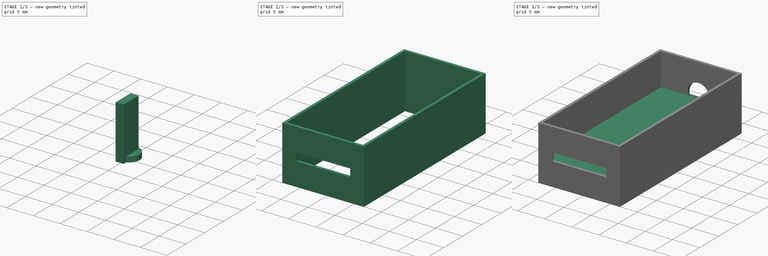
[diagram: build sequence overview — one tinted view per stage of 3, left to right]
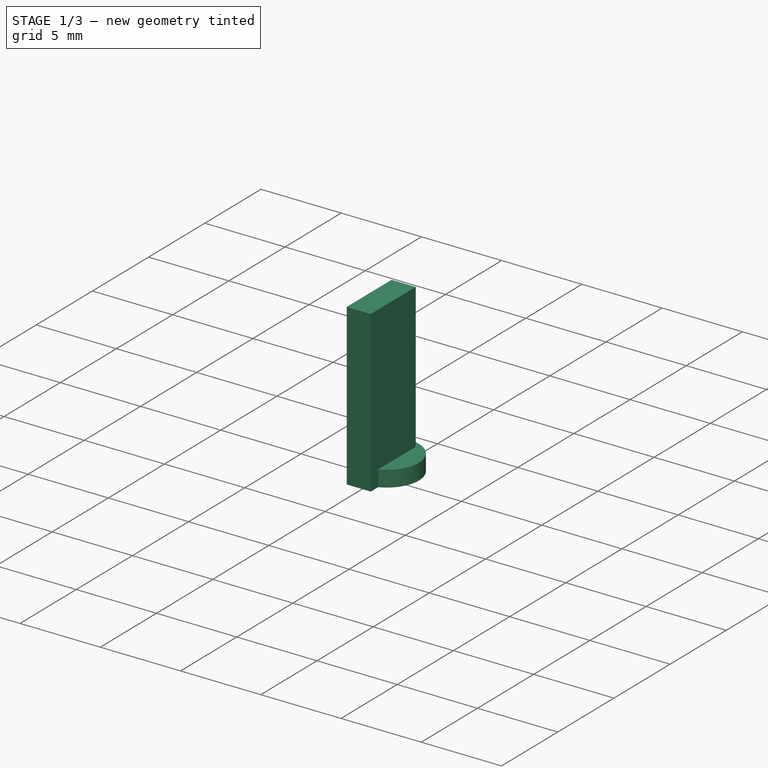
[diagram: stage 1 of 3 — iso view after this stage's code; geometry added in this stage tinted green]
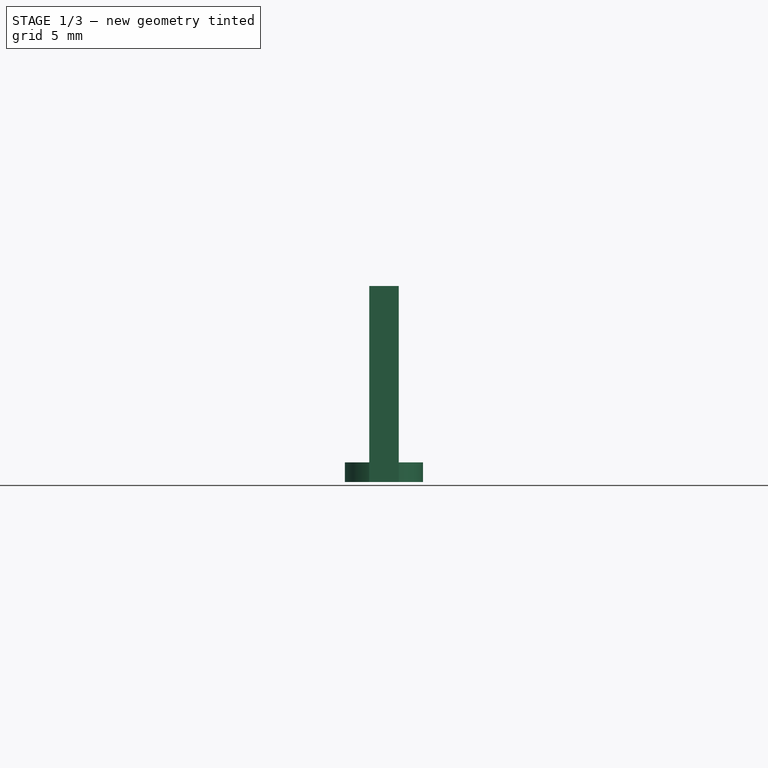
[diagram: stage 1 of 3 — front view after this stage's code; geometry added in this stage tinted green]
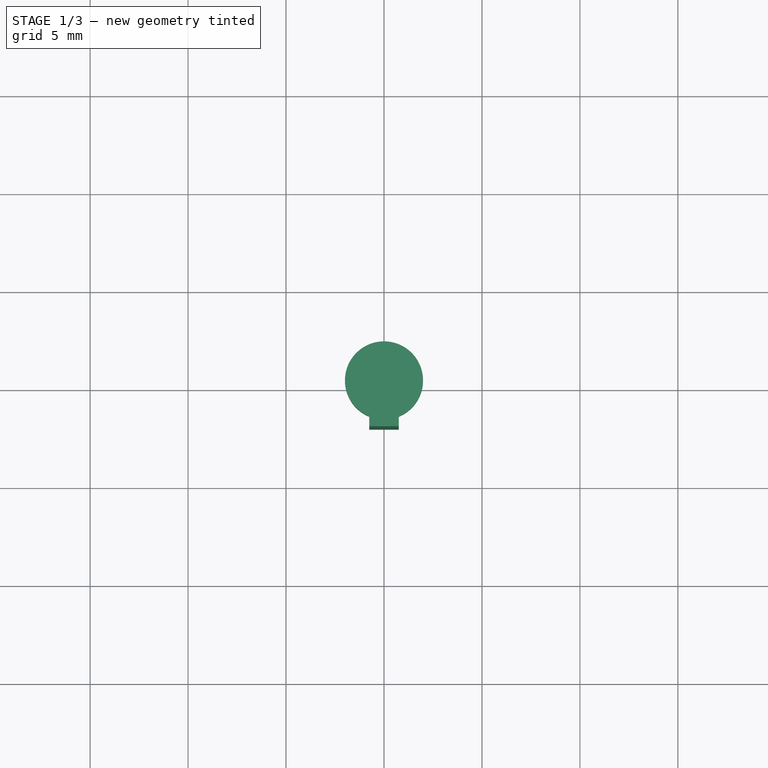
[diagram: stage 1 of 3 — top view after this stage's code; geometry added in this stage tinted green]
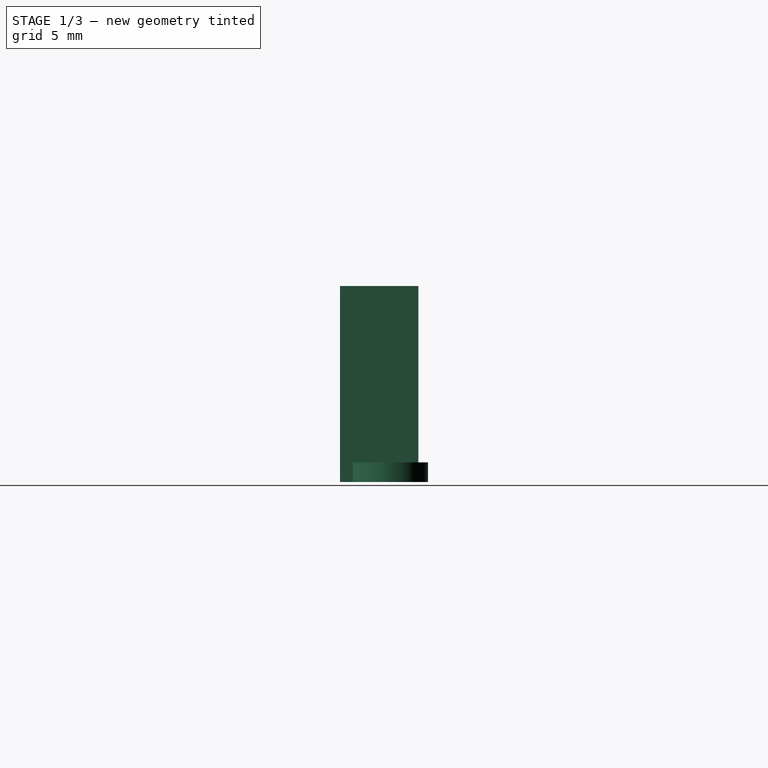
[diagram: stage 1 of 3 — right view after this stage's code; geometry added in this stage tinted green]
FCSTD DOCUMENT  (FreeCAD 0.19R24291 (Git))
Label: pj01
License: All rights reserved
LicenseURL: http://en.wikipedia.org/wiki/All_rights_reserved
objects: Sketcher::SketchObject×4, PartDesign::Pad×4, PartDesign::Body×4, Part::Cut×2
note: 18 computed .brp shape members not serialized (recipe doc carries the construction recipe); baked Part::Feature solids carry a one-line shape summary decoded from their .brp

FEATURE [PartDesign::Body] Body
  Group = -> [Sketch,Pad]
  Origin = -> Origin
  Tip = -> Pad
FEATURE [Sketcher::SketchObject] Sketch002
  FullyConstrained = true
  MapMode = 5
  Support = -> [XY_Plane002]
  sketch-geometry (4):
    g0: LineSegment StartX=-0.75 StartY=2 StartZ=0 EndX=0.75 EndY=2 EndZ=0
    g1: LineSegment StartX=0.75 StartY=2 StartZ=0 EndX=0.75 EndY=-2 EndZ=0
    g2: LineSegment StartX=0.75 StartY=-2 StartZ=0 EndX=-0.75 EndY=-2 EndZ=0
    g3: LineSegment StartX=-0.75 StartY=-2 StartZ=0 EndX=-0.75 EndY=2 EndZ=0
  constraints (10):
    c: Coincident(g0,g1)
    c: Coincident(g1,g2)
    c: Coincident(g2,g3)
    c: Coincident(g3,g0)
    c: Horizontal(g2)
    c: Vertical(g1)
    c: DistanceX(g0,g0) = 1.5
    c: DistanceY(g1,g1) = 4
    c: Symmetric(g0,g0,g-2)
    c: Symmetric(g2,g0,g-1)
FEATURE [PartDesign::Pad] Pad004
  Direction = (0,1,1)
  Length = 10
  Length2 = 100
  Profile = -> Sketch002
  Type = 0
FEATURE [Sketcher::SketchObject] Sketch003
  FullyConstrained = false
  MapMode = 5
  Support = -> [XY_Plane003]
  sketch-geometry (1):
    g0: Circle CenterX=0 CenterY=0.5 CenterZ=0 NormalX=0 NormalY=0 NormalZ=1 AngleXU=0 Radius=1.99366
  constraints (1):
    c: Symmetric(g-2,g-2,g0)
FEATURE [PartDesign::Pad] Pad005
  Direction = (-1,1,1)
  Length = 1
  Length2 = 100
  Profile = -> Sketch003
  Type = 0
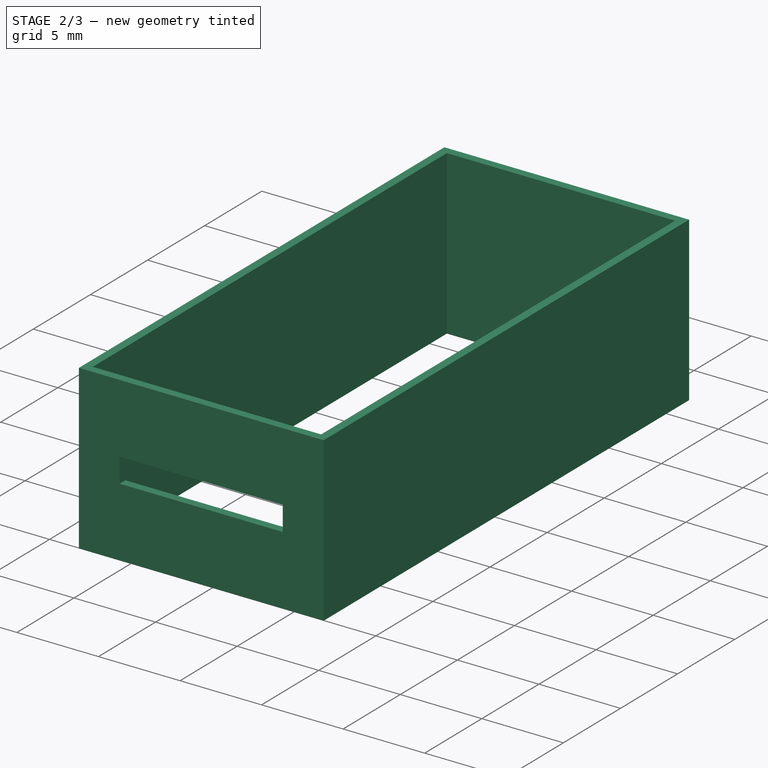
[diagram: stage 2 of 3 — iso view after this stage's code; geometry added in this stage tinted green]
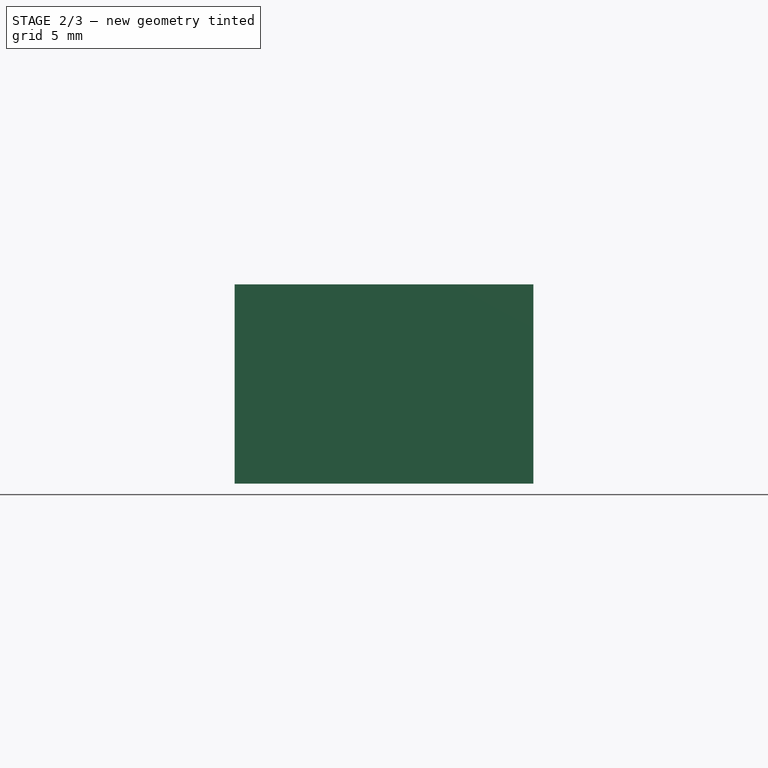
[diagram: stage 2 of 3 — front view after this stage's code; geometry added in this stage tinted green]
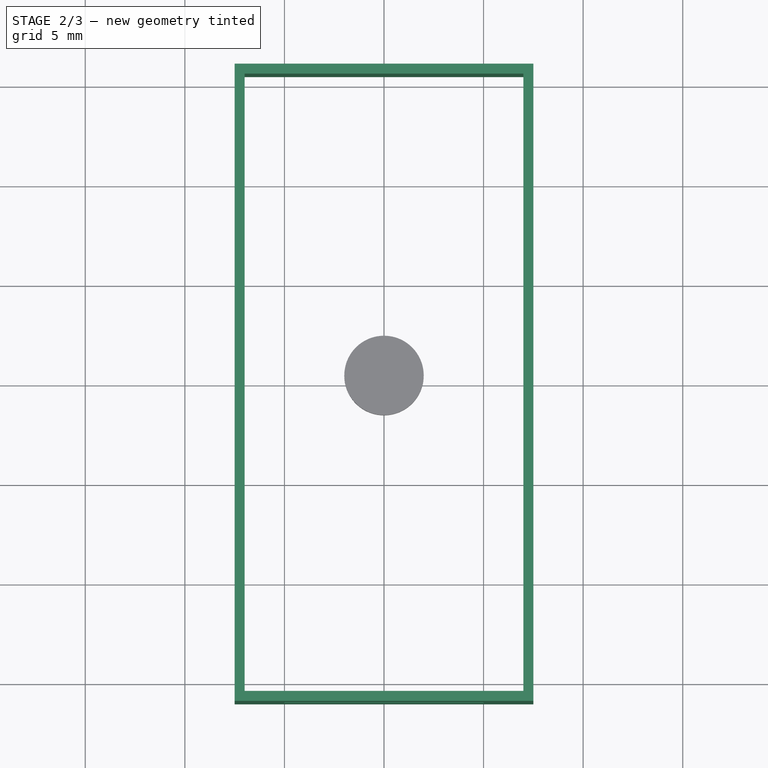
[diagram: stage 2 of 3 — top view after this stage's code; geometry added in this stage tinted green]
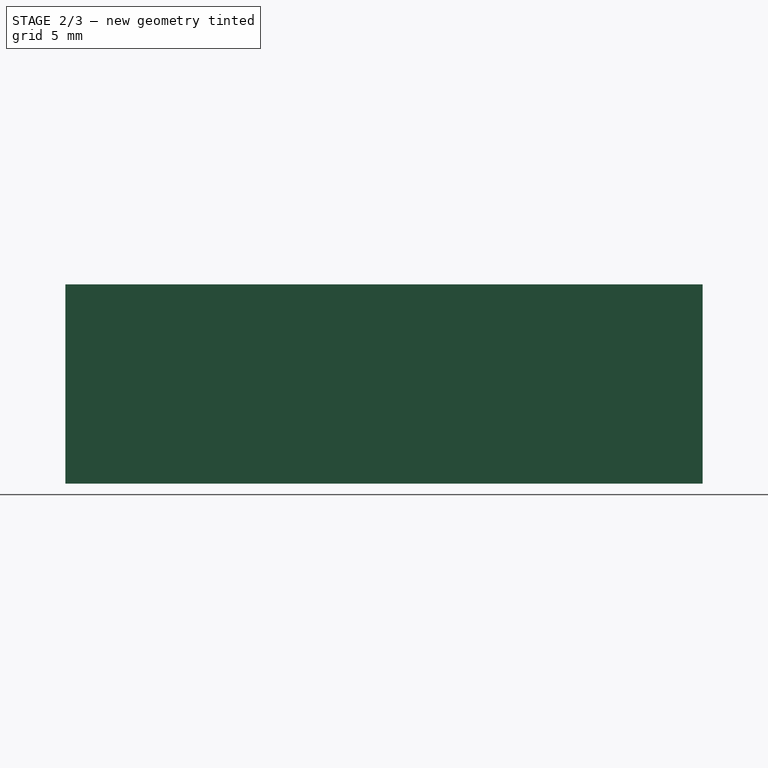
[diagram: stage 2 of 3 — right view after this stage's code; geometry added in this stage tinted green]
FEATURE [Sketcher::SketchObject] Sketch
  FullyConstrained = true
  MapMode = 5
  Support = -> [XY_Plane]
  sketch-geometry (8):
    g0: LineSegment StartX=-7 StartY=15.5 StartZ=0 EndX=7 EndY=15.5 EndZ=0
    g1: LineSegment StartX=7 StartY=15.5 StartZ=0 EndX=7 EndY=-15.5 EndZ=0
    g2: LineSegment StartX=7 StartY=-15.5 StartZ=0 EndX=-7 EndY=-15.5 EndZ=0
    g3: LineSegment StartX=-7 StartY=-15.5 StartZ=0 EndX=-7 EndY=15.5 EndZ=0
    g4: LineSegment StartX=-7.5 StartY=16 StartZ=0 EndX=7.5 EndY=16 EndZ=0
    g5: LineSegment StartX=7.5 StartY=16 StartZ=0 EndX=7.5 EndY=-16 EndZ=0
    g6: LineSegment StartX=7.5 StartY=-16 StartZ=0 EndX=-7.5 EndY=-16 EndZ=0
    g7: LineSegment StartX=-7.5 StartY=-16 StartZ=0 EndX=-7.5 EndY=16 EndZ=0
  constraints (20):
    c: Coincident(g0,g1)
    c: Coincident(g1,g2)
    c: Coincident(g2,g3)
    c: Coincident(g3,g0)
    c: Horizontal(g2)
    c: Vertical(g1)
    c: DistanceY(g1,g1) = 31
    c: DistanceX(g0,g0) = 14
    c: Symmetric(g0,g0,g-2)
    c: Symmetric(g2,g0,g-1)
    c: Coincident(g4,g5)
    c: Coincident(g5,g6)
    c: Coincident(g6,g7)
    c: Coincident(g7,g4)
    c: Horizontal(g6)
    c: Vertical(g5)
    c: DistanceX(g4,g4) = 15
    c: DistanceY(g5,g5) = 32
    c: Symmetric(g4,g4,g-2)
    c: Symmetric(g6,g4,g-1)
FEATURE [PartDesign::Pad] Pad
  Direction = (1,1,1)
  Length = 10
  Length2 = 100
  Profile = -> Sketch
  Type = 0
FEATURE [PartDesign::Body] Body001
  Group = -> [Sketch001,Pad001]
  Origin = -> Origin001
  Tip = -> Pad001
FEATURE [Part::Cut] Cut
  Base = -> Body
  Tool = -> Body002
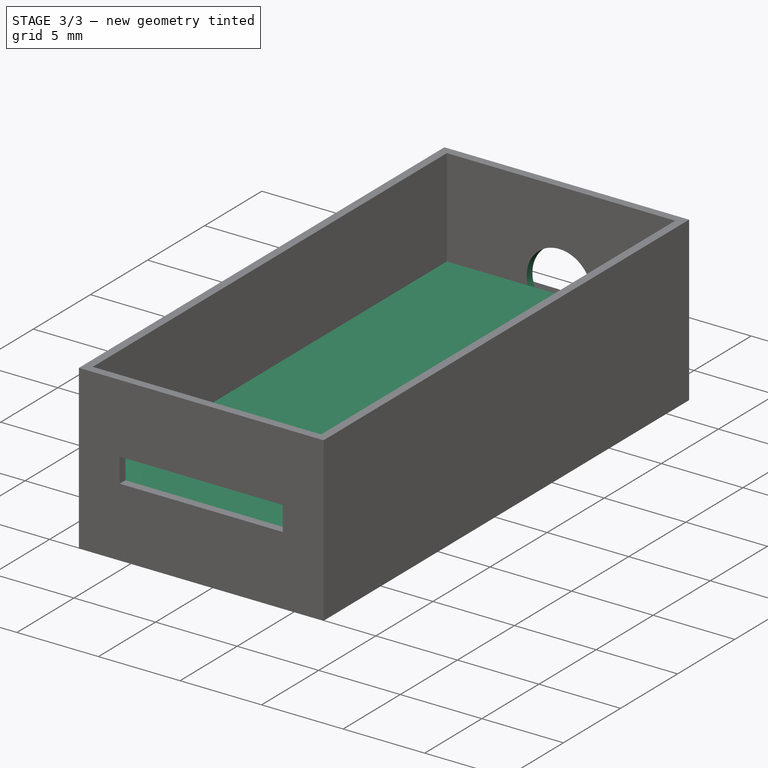
[diagram: stage 3 of 3 — iso view after this stage's code; geometry added in this stage tinted green]
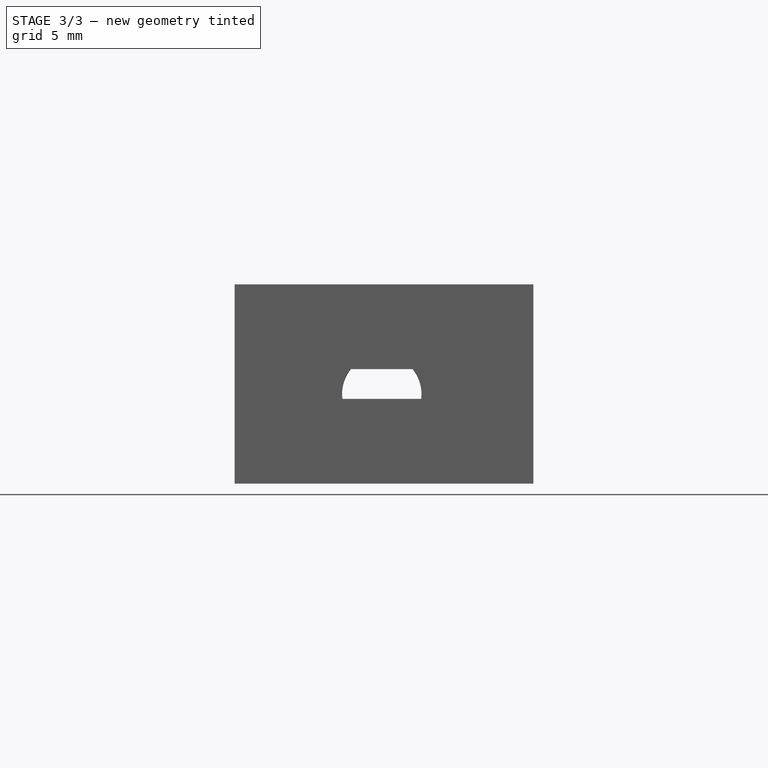
[diagram: stage 3 of 3 — front view after this stage's code; geometry added in this stage tinted green]
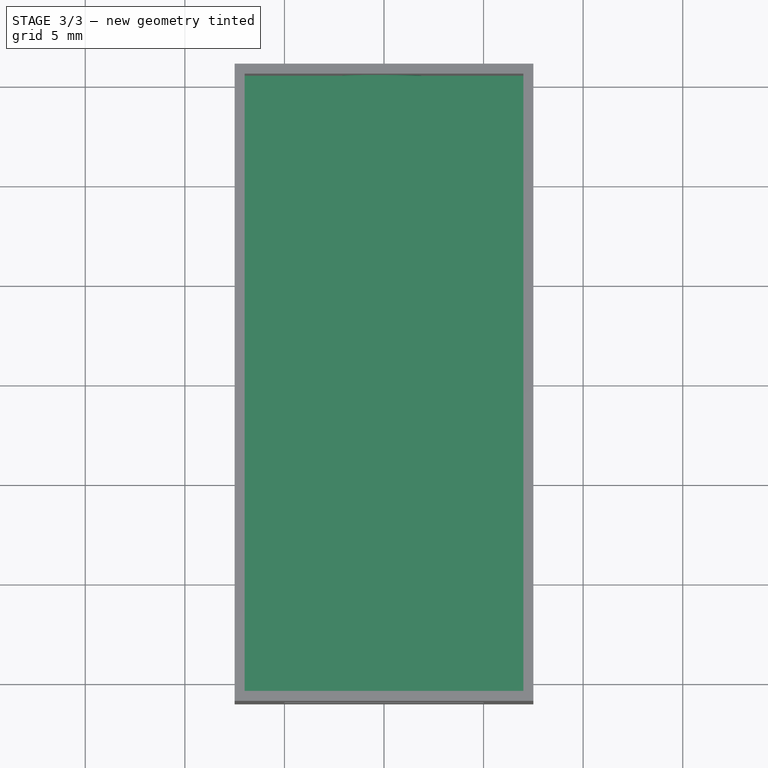
[diagram: stage 3 of 3 — top view after this stage's code; geometry added in this stage tinted green]
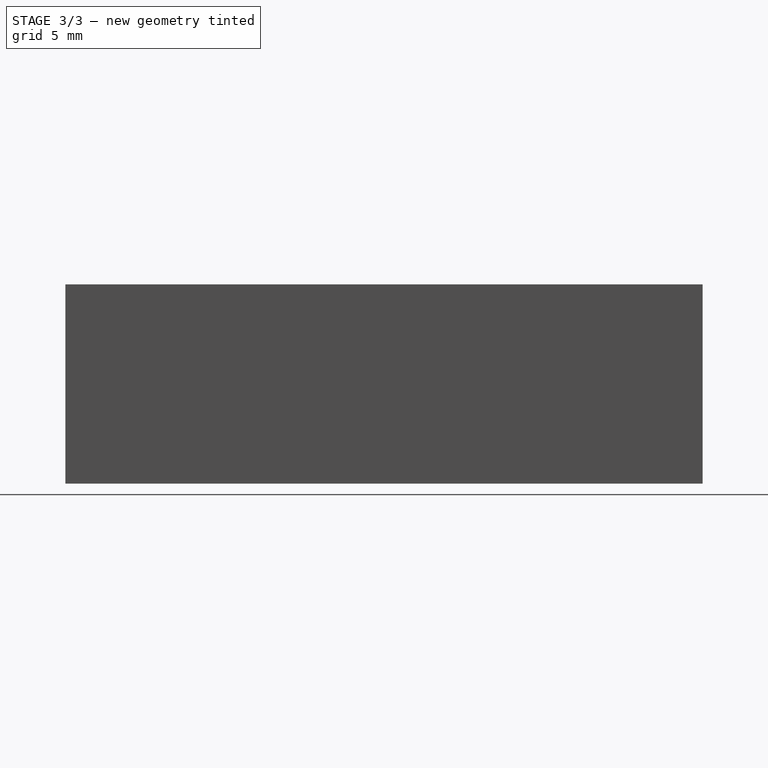
[diagram: stage 3 of 3 — right view after this stage's code; geometry added in this stage tinted green]
FEATURE [PartDesign::Body] Body002
  Group = -> [Sketch002,Pad004]
  Origin = -> Origin002
  Placement = pos=(-5,-14,5) rot=(0.707107,0,0.707107;3.14159rad)
  Tip = -> Pad004
FEATURE [Sketcher::SketchObject] Sketch001
  FullyConstrained = true
  MapMode = 5
  Support = -> [XY_Plane001]
  sketch-geometry (4):
    g0: LineSegment StartX=-7 StartY=15.5 StartZ=0 EndX=7 EndY=15.5 EndZ=0
    g1: LineSegment StartX=7 StartY=15.5 StartZ=0 EndX=7 EndY=-15.5 EndZ=0
    g2: LineSegment StartX=7 StartY=-15.5 StartZ=0 EndX=-7 EndY=-15.5 EndZ=0
    g3: LineSegment StartX=-7 StartY=-15.5 StartZ=0 EndX=-7 EndY=15.5 EndZ=0
  constraints (10):
    c: Coincident(g0,g1)
    c: Coincident(g1,g2)
    c: Coincident(g2,g3)
    c: Coincident(g3,g0)
    c: Horizontal(g2)
    c: Vertical(g1)
    c: DistanceX(g0,g0) = 14
    c: DistanceY(g1,g1) = 31
    c: Symmetric(g0,g0,g-2)
    c: Symmetric(g2,g0,g-1)
FEATURE [PartDesign::Pad] Pad001
  Direction = (1,1,1)
  Length = 4
  Length2 = 100
  Profile = -> Sketch001
  Type = 0
FEATURE [PartDesign::Body] Body003
  Group = -> [Sketch003,Pad005]
  Origin = -> Origin003
  Placement = pos=(0,16,4) rot=(-0.986248,0.111519,-0.121974;-1.50098rad)
  Tip = -> Pad005
FEATURE [Part::Cut] Cut001
  Base = -> Cut
  Tool = -> Body003
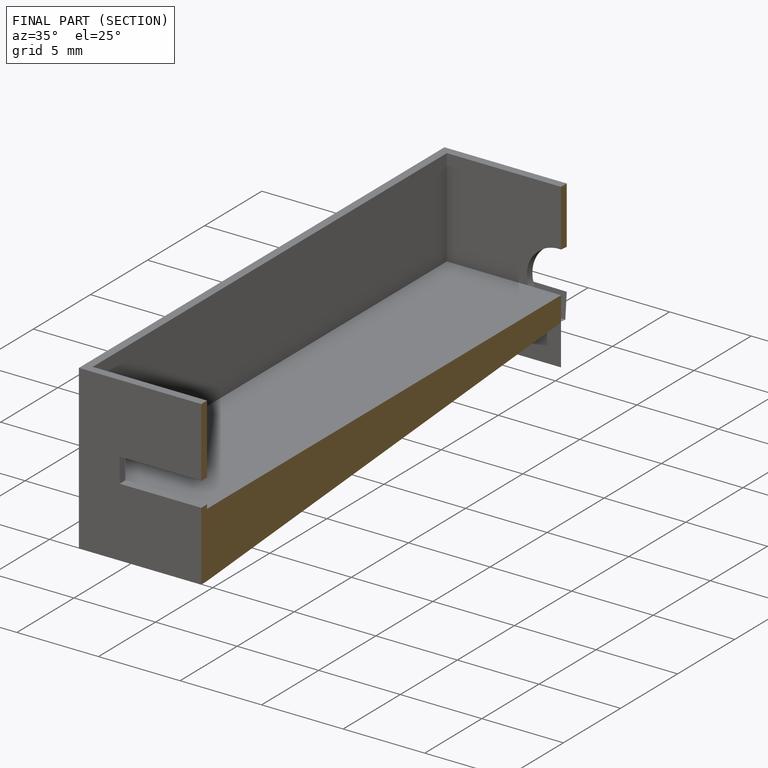
[diagram: finished part — half-section view (interior)]
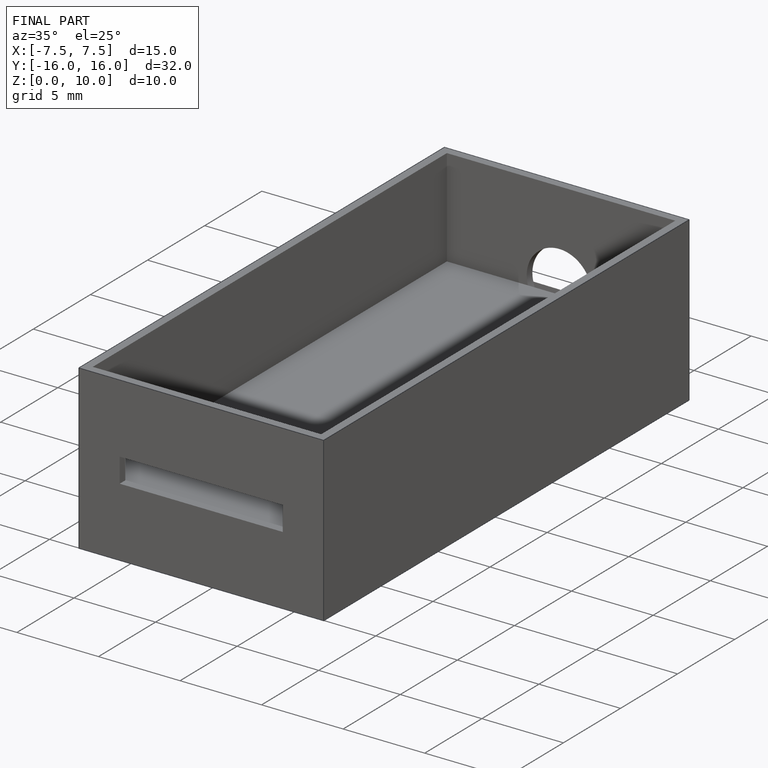
[diagram: finished part — iso view with bounding-box wireframe]
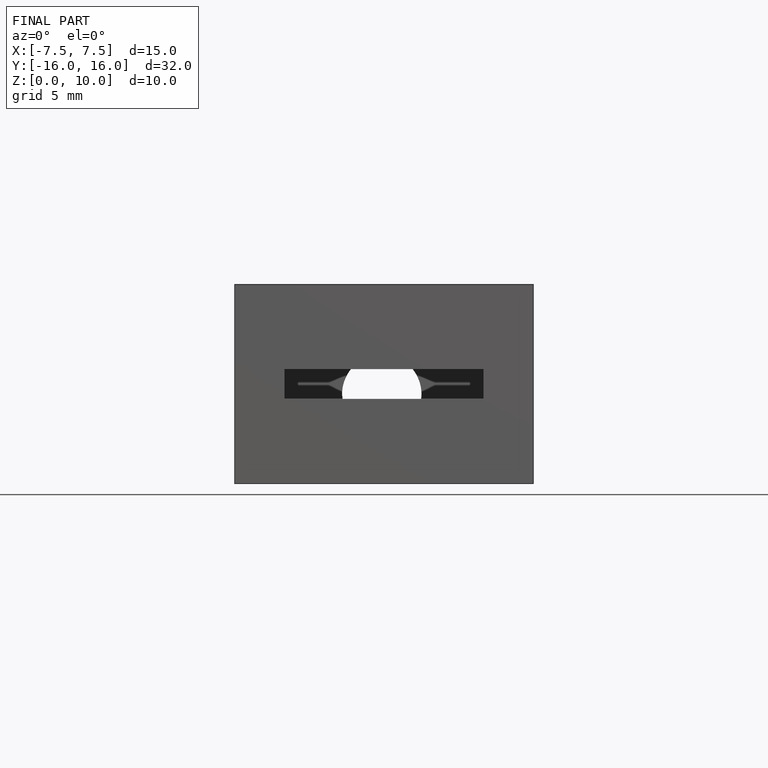
[diagram: finished part — front view with bounding-box wireframe]
